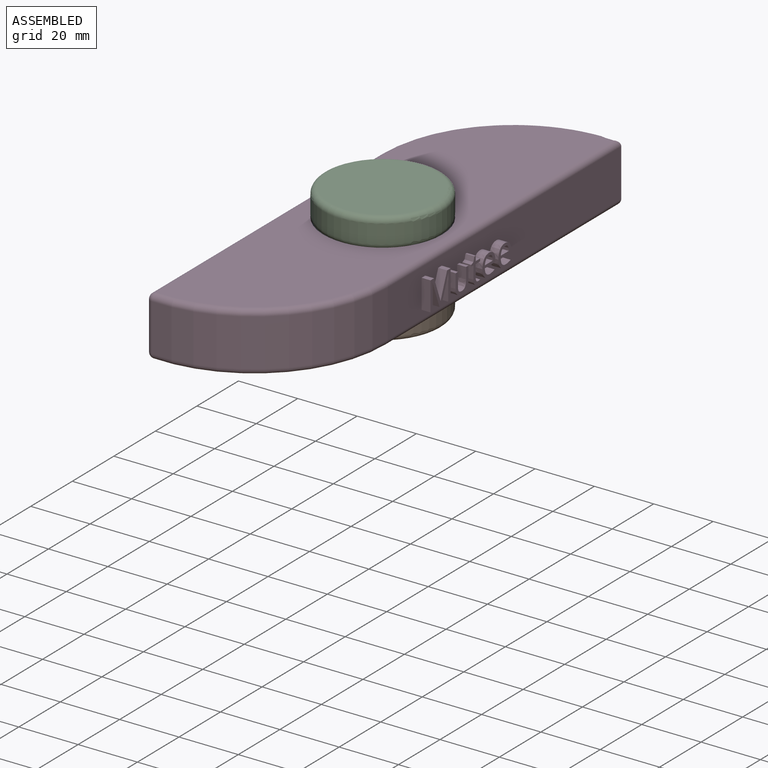
[diagram: assembled view]
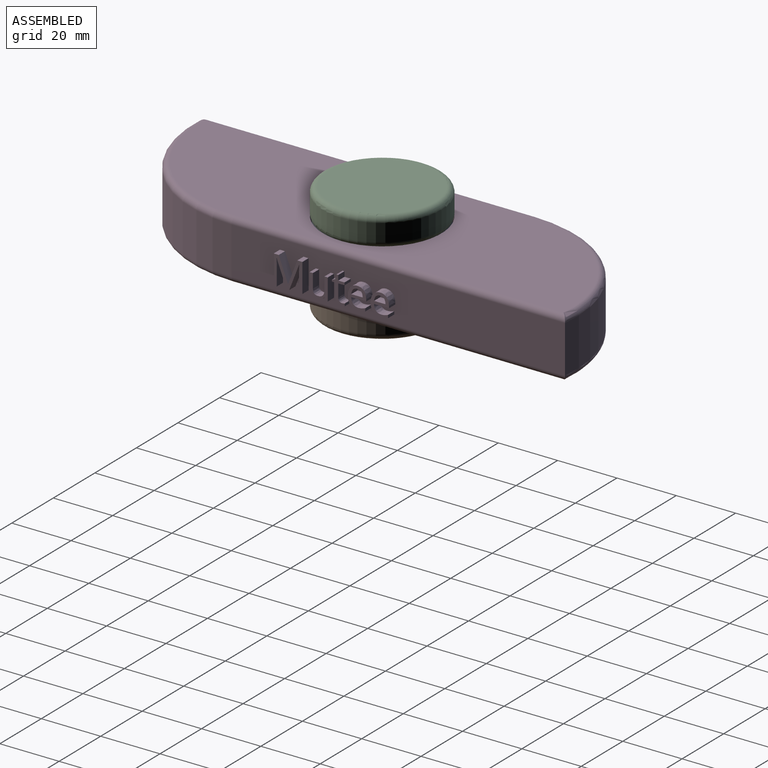
[diagram: assembled view, second angle]
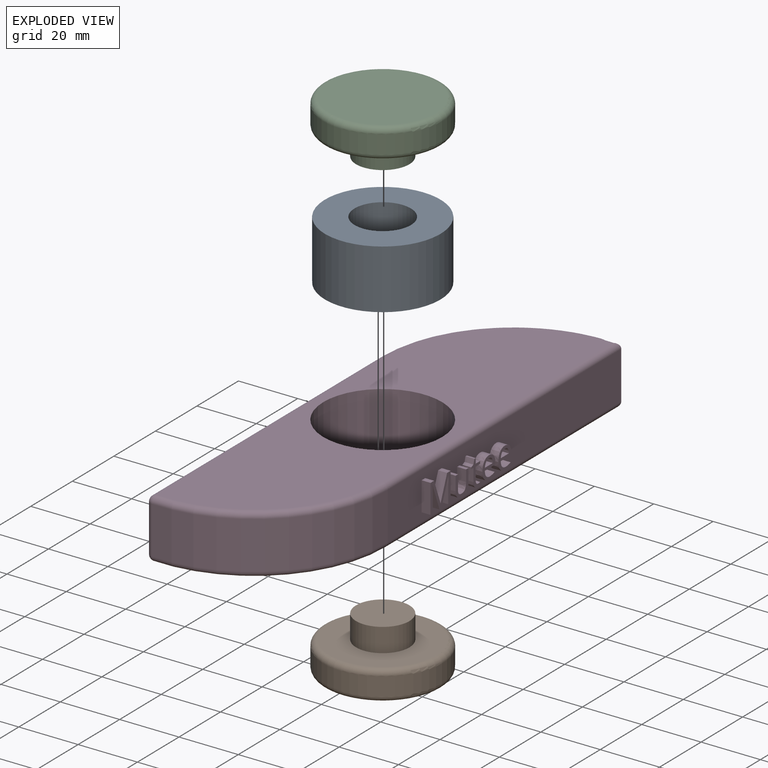
[diagram: exploded view]
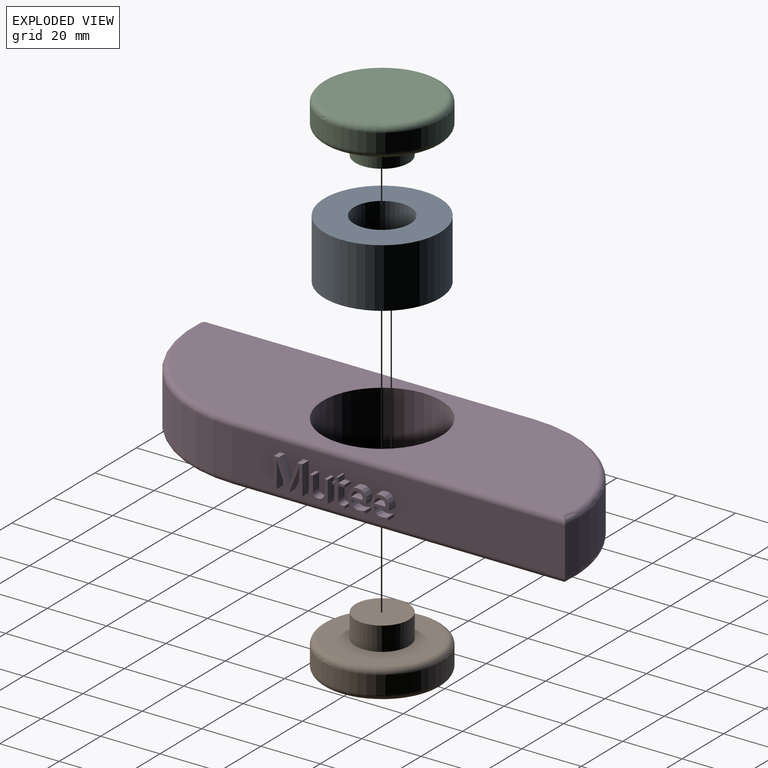
[diagram: exploded view, second angle]
ASSEMBLY  parts=4 mates=3
PART A: 7 faces, bbox 39x39x20 mm
  f0: cylinder r=19.5mm len=39mm, axis (0,0,-1), area 2450.4mm2, adj f1,f2
  f1: plane 39x39mm, normal (0,0,1), area 911.1mm2, adj f0,f5
  f2: plane 39x39mm, normal (0,0,-1), area 911.1mm2, adj f0,f3
  f3: cylinder r=9.5mm len=19mm, axis (0,0,-1), area 537.2mm2, adj f2,f4
  f4: plane 19x19mm, normal (0,0,-1), area 283.5mm2, adj f3
  f5: cylinder r=9.5mm len=19mm, axis (0,0,1), area 537.2mm2, adj f1,f6
  f6: plane 19x19mm, normal (0,0,1), area 283.5mm2, adj f5
PART B: 7 faces, bbox 43.3x43.3x18 mm
  f0: cylinder r=20mm len=40mm, axis (0,0,-1), area 754mm2, adj f3,f4
  f1: plane 36x36mm, normal (0,0,1), area 763.4mm2, adj f4,f5
  f2: plane 36x36mm, normal (0,0,-1), area 1017.9mm2, adj f3
  f3: torus R=18mm, axis (0,0,1), area 380.4mm2, adj f0,f2
  f4: torus R=18mm, axis (0,0,1), area 380.4mm2, adj f0,f1
  f5: cylinder r=9mm len=18mm, axis (0,0,-1), area 452.4mm2, adj f1,f6
  f6: plane 18x18mm, normal (0,0,1), area 254.5mm2, adj f5
PART C: 7 faces, bbox 43.3x43.3x18 mm
  f0: cylinder r=20mm len=40mm, axis (0,0,-1), area 754mm2, adj f5,f6
  f1: plane 36x36mm, normal (0,0,1), area 1017.9mm2, adj f6
  f2: plane 36x36mm, normal (0,0,-1), area 763.4mm2, adj f3,f5
  f3: cylinder r=9mm len=18mm, axis (0,0,1), area 452.4mm2, adj f2,f4
  f4: plane 18x18mm, normal (0,0,-1), area 254.5mm2, adj f3
  f5: torus R=18mm, axis (0,0,1), area 380.4mm2, adj f0,f2
  f6: torus R=18mm, axis (0,0,1), area 380.4mm2, adj f0,f1
PART D: 228 faces, bbox 57.4x165.2x20 mm
  f0: plane 110.63x16mm, normal (-1,0,0), area 1637.3mm2, adj f2,f9,f12,f16,f117,f118,f119,f120
  f1: plane 112.46x16mm, normal (1,0,0), area 1669.1mm2, adj f2,f3,f8,f15,f18,f19,f20,f21
  f2: cylinder r=45mm len=50mm, axis (0,0,-1), area 1211.1mm2, adj f0,f1,f7,f17
  f3: cylinder r=45mm len=48.14mm, axis (0,0,-1), area 1181.2mm2, adj f1,f10,f12,f13
  f4: plane 153.74x46mm, normal (0,0,1), area 5021.4mm2, adj f6,f7,f8,f9,f10
  f5: plane 153.74x46mm, normal (0,0,-1), area 5021.4mm2, adj f6,f13,f15,f16,f17
  f6: cylinder r=20mm len=40mm, axis (0,0,1), area 2513.3mm2, adj f4,f5
  f7: torus R=43mm, axis (0,0,1), area 231.9mm2, adj f2,f4,f8,f9
  f8: cylinder r=2mm len=112.46mm, axis (0,-1,0), area 351.2mm2, adj f1,f4,f7,f10
  f9: cylinder r=2mm len=110.63mm, axis (0,1,0), area 347.6mm2, adj f0,f4,f7,f11
  f10: torus R=43mm, axis (0,0,1), area 228.2mm2, adj f3,f4,f8,f11
  f11: sphere r=2mm, area 6mm2, adj f9,f10,f12
  f12: cylinder r=2mm len=16mm, axis (0,0,-1), area 48mm2, adj f0,f3,f11,f14
  f13: torus R=43mm, axis (0,0,1), area 228.2mm2, adj f3,f5,f14,f15
  f14: sphere r=2mm, area 6mm2, adj f12,f13,f16
  f15: cylinder r=2mm len=112.46mm, axis (0,1,0), area 351.2mm2, adj f1,f5,f13,f17
  f16: cylinder r=2mm len=110.63mm, axis (0,-1,0), area 347.6mm2, adj f0,f5,f14,f17,f162
  f17: torus R=43mm, axis (0,0,1), area 231.9mm2, adj f2,f5,f15,f16
  f18: plane 8.66x3.31mm, normal (0,-0.93,-0.36), area 27.8mm2, adj f1,f19,f35,f36
  f19: plane 3x0.91mm, normal (0,0,-1), area 2.7mm2, adj f1,f18,f20,f36
  f20: plane 8.64x3.34mm, normal (0,0.93,-0.36), area 27.8mm2, adj f1,f19,f21,f36
  f21: plane 3x0.05mm, normal (0,0,-1), area 0.2mm2, adj f1,f20,f22,f36
  f22: extruded ~3x2.35mm, area 7.1mm2, adj f1,f21,f23,f36
  f23: plane 6.29x3mm, normal (0,-1,0), area 18.9mm2, adj f1,f22,f24,f36
  f24: plane 3x1.13mm, normal (0,0,-1), area 3.4mm2, adj f1,f23,f25,f36
  f25: plane 9.76x3mm, normal (0,1,0), area 29.3mm2, adj f1,f24,f26,f36
  f26: plane 3x1.7mm, normal (0,0,1), area 5.1mm2, adj f1,f25,f27,f36
  f27: plane 8.05x3.12mm, normal (0,-0.93,0.36), area 25.9mm2, adj f1,f26,f28,f36
  f28: plane 3x0.05mm, normal (0,0,1), area 0.2mm2, adj f1,f27,f29,f36
  f29: plane 8.05x3.09mm, normal (0,0.93,0.36), area 25.9mm2, adj f1,f28,f30,f36
  f30: plane 3x1.71mm, normal (0,0,1), area 5.1mm2, adj f1,f29,f31,f36
  f31: plane 9.76x3mm, normal (0,-1,0), area 29.3mm2, adj f1,f30,f32,f36
  f32: plane 3x1.05mm, normal (0,0,-1), area 3.1mm2, adj f1,f31,f33,f36
  f33: plane 6.21x3mm, normal (0,1,0), area 18.6mm2, adj f1,f32,f34,f36
  f34: extruded ~3x2.44mm, area 7.3mm2, adj f1,f33,f35,f36
  f35: plane 3x0.05mm, normal (0,0,-1), area 0.2mm2, adj f1,f18,f34,f36
  f36: plane 9.76x9.67mm, normal (1,0,0), area 40.8mm2, adj f18,f19,f20,f21,f22,f23,f24,f25
  f37: plane 4.75x3mm, normal (0,1,0), area 14.2mm2, adj f1,f38,f53,f54
  f38: plane 3x1.12mm, normal (0,0,1), area 3.4mm2, adj f1,f37,f39,f54
  f39: plane 4.79x3mm, normal (0,-1,0), area 14.4mm2, adj f1,f38,f40,f54
  f40: extruded ~3x2.03mm, area 6.6mm2, adj f1,f39,f41,f54
  f41: extruded ~3x2mm, area 6.4mm2, adj f1,f40,f42,f54
  f42: extruded ~3x1.38mm, area 4.3mm2, adj f1,f41,f43,f54
  f43: extruded ~3x0.94mm, area 3.8mm2, adj f1,f42,f44,f54
  f44: plane 3x0.06mm, normal (0,0,-1), area 0.2mm2, adj f1,f43,f45,f54
  f45: plane 3x0.98mm, normal (0,-0.99,-0.16), area 3mm2, adj f1,f44,f46,f54
  f46: plane 3x0.91mm, normal (0,0,-1), area 2.7mm2, adj f1,f45,f47,f54
  f47: plane 7.32x3mm, normal (0,1,0), area 22mm2, adj f1,f46,f48,f54
  f48: plane 3x1.11mm, normal (0,0,1), area 3.3mm2, adj f1,f47,f49,f54
  f49: plane 3.85x3mm, normal (0,-1,0), area 11.5mm2, adj f1,f48,f50,f54
  f50: extruded ~3x2.05mm, area 6.5mm2, adj f1,f49,f51,f54
  f51: extruded ~3x1.68mm, area 5.6mm2, adj f1,f50,f52,f54
  f52: extruded ~3x1.27mm, area 4.2mm2, adj f1,f51,f53,f54
  f53: extruded ~3x1.34mm, area 4.3mm2, adj f1,f37,f52,f54
  f54: plane 7.45x6.12mm, normal (1,0,0), area 19.5mm2, adj f37,f38,f39,f40,f41,f42,f43,f44
  f55: extruded ~3x0.57mm, area 1.7mm2, adj f1,f56,f73,f74
  f56: extruded ~3x0.86mm, area 2.9mm2, adj f1,f55,f57,f74
  f57: extruded ~3x1.01mm, area 3.3mm2, adj f1,f56,f58,f74
  f58: plane 4.31x3mm, normal (0,1,0), area 12.9mm2, adj f1,f57,f59,f74
  f59: plane 3x2.12mm, normal (0,0,-1), area 6.4mm2, adj f1,f58,f60,f74
  f60: plane 3x0.86mm, normal (0,1,0), area 2.6mm2, adj f1,f59,f61,f74
  f61: plane 3x2.12mm, normal (0,0,1), area 6.4mm2, adj f1,f60,f62,f74
  f62: plane 3x1.7mm, normal (0,1,0), area 5.1mm2, adj f1,f61,f63,f74
  f63: plane 3x0.64mm, normal (0,0,1), area 1.9mm2, adj f1,f62,f64,f74
  f64: plane 3x1.56mm, normal (0,-0.96,0.29), area 4.9mm2, adj f1,f63,f65,f74
  f65: plane 3x1.05mm, normal (0,-0.4,0.92), area 3.4mm2, adj f1,f64,f66,f74
  f66: plane 3x0.53mm, normal (0,-1,0), area 1.6mm2, adj f1,f65,f67,f74
  f67: plane 3x1.05mm, normal (0,0,-1), area 3.1mm2, adj f1,f66,f68,f74
  f68: plane 4.36x3mm, normal (0,-1,0), area 13.1mm2, adj f1,f67,f69,f74
  f69: extruded ~3x2.24mm, area 10.6mm2, adj f1,f68,f70,f74
  f70: extruded ~3x0.63mm, area 1.9mm2, adj f1,f69,f71,f74
  f71: extruded ~3x0.53mm, area 1.7mm2, adj f1,f70,f72,f74
  f72: plane 3x0.85mm, normal (0,1,0), area 2.5mm2, adj f1,f71,f73,f74
  f73: extruded ~3x0.43mm, area 1.3mm2, adj f1,f55,f72,f74
  f74: plane 9.15x4.33mm, normal (1,0,0), area 13.9mm2, adj f55,f56,f57,f58,f59,f60,f61,f62
  f75: extruded ~3x1.41mm, area 4.7mm2, adj f76,f93,f94,f95
  f76: extruded ~3x1.34mm, area 4.5mm2, adj f75,f77,f94,f95
  f77: extruded ~3x1.61mm, area 5.1mm2, adj f76,f78,f94,f95
  f78: plane 3.83x3mm, normal (0,0,1), area 11.5mm2, adj f77,f93,f94,f95
  f79: extruded ~3x2.56mm, area 8.5mm2, adj f1,f80,f92,f94
  f80: extruded ~3x1.27mm, area 3.8mm2, adj f1,f79,f81,f94
  f81: extruded ~3x1.11mm, area 3.5mm2, adj f1,f80,f82,f94
  f82: plane 3x0.99mm, normal (0,1,0), area 3mm2, adj f1,f81,f83,f94
  f83: extruded ~3x2.34mm, area 7.2mm2, adj f1,f82,f84,f94
  f84: extruded ~3x1.74mm, area 5.8mm2, adj f1,f83,f85,f94
  f85: extruded ~3x1.96mm, area 6.3mm2, adj f1,f84,f86,f94
  f86: plane 5.04x3mm, normal (0,0,-1), area 15.1mm2, adj f1,f85,f87,f94
  f87: plane 3x0.7mm, normal (0,1,0), area 2.1mm2, adj f1,f86,f88,f94
  f88: extruded ~3x2.39mm, area 7.7mm2, adj f1,f87,f89,f94
  f89: extruded ~3x2.18mm, area 7.3mm2, adj f1,f88,f90,f94
  f90: extruded ~3x2.34mm, area 8mm2, adj f1,f89,f91,f94
  f91: extruded ~3x2.81mm, area 9mm2, adj f1,f90,f92,f94
  f92: extruded ~3x2.74mm, area 8.9mm2, adj f1,f79,f91,f94
  f93: extruded ~3x1.59mm, area 5.2mm2, adj f75,f78,f94,f95
  f94: plane 7.59x6.19mm, normal (1,0,0), area 21.4mm2, adj f75,f76,f77,f78,f79,f80,f81,f82
  f95: plane 3.83x2.16mm, normal (1,0,0), area 6.7mm2, adj f75,f76,f77,f78,f93
  f96: extruded ~3x1.41mm, area 4.7mm2, adj f97,f114,f115,f116
  f97: extruded ~3x1.34mm, area 4.5mm2, adj f96,f98,f115,f116
  f98: extruded ~3x1.61mm, area 5.1mm2, adj f97,f99,f115,f116
  f99: plane 3.83x3mm, normal (0,0,1), area 11.5mm2, adj f98,f114,f115,f116
  f100: extruded ~3x2.56mm, area 8.5mm2, adj f1,f101,f113,f115
  f101: extruded ~3x1.27mm, area 3.8mm2, adj f1,f100,f102,f115
  f102: extruded ~3x1.11mm, area 3.5mm2, adj f1,f101,f103,f115
  f103: plane 3x0.99mm, normal (0,1,0), area 3mm2, adj f1,f102,f104,f115
  f104: extruded ~3x2.34mm, area 7.2mm2, adj f1,f103,f105,f115
  f105: extruded ~3x1.74mm, area 5.8mm2, adj f1,f104,f106,f115
  f106: extruded ~3x1.96mm, area 6.3mm2, adj f1,f105,f107,f115
  f107: plane 5.04x3mm, normal (0,0,-1), area 15.1mm2, adj f1,f106,f108,f115
  f108: plane 3x0.7mm, normal (0,1,0), area 2.1mm2, adj f1,f107,f109,f115
  f109: extruded ~3x2.39mm, area 7.7mm2, adj f1,f108,f110,f115
  f110: extruded ~3x2.18mm, area 7.3mm2, adj f1,f109,f111,f115
  f111: extruded ~3x2.34mm, area 8mm2, adj f1,f110,f112,f115
  f112: extruded ~3x2.81mm, area 9mm2, adj f1,f111,f113,f115
  f113: extruded ~3x2.74mm, area 8.9mm2, adj f1,f100,f112,f115
  f114: extruded ~3x1.59mm, area 5.2mm2, adj f96,f99,f115,f116
  f115: plane 7.59x6.19mm, normal (1,0,0), area 21.4mm2, adj f96,f97,f98,f99,f100,f101,f102,f103
  f116: plane 3.83x2.16mm, normal (1,0,0), area 6.7mm2, adj f96,f97,f98,f99,f114
  f117: extruded ~3x1.12mm, area 4.3mm2, adj f0,f118,f131,f132
  f118: plane 3x0.06mm, normal (0,0,1), area 0.2mm2, adj f0,f117,f119,f132
  f119: extruded ~3x1.19mm, area 3.6mm2, adj f0,f118,f120,f132
  f120: plane 5.76x3mm, normal (0,-1,0), area 17.3mm2, adj f0,f119,f121,f132
  f121: plane 3x1.15mm, normal (0,0,1), area 3.4mm2, adj f0,f120,f122,f132
  f122: plane 10.86x3mm, normal (0,1,0), area 32.6mm2, adj f0,f121,f123,f132
  f123: plane 3x1.15mm, normal (0,0,-1), area 3.4mm2, adj f0,f122,f124,f132
  f124: plane 3x2.86mm, normal (0,-1,0), area 8.6mm2, adj f0,f123,f125,f132
  f125: plane 3x0.87mm, normal (0,-0.65,-0.76), area 3.5mm2, adj f0,f124,f126,f132
  f126: plane 3.62x3mm, normal (0,0.8,-0.6), area 13.5mm2, adj f0,f125,f127,f132
  f127: plane 3x1.4mm, normal (0,0,-1), area 4.2mm2, adj f0,f126,f128,f132
  f128: plane 4.39x3.32mm, normal (0,-0.8,0.6), area 16.5mm2, adj f0,f127,f129,f132
  f129: plane 3.26x3.1mm, normal (0,-0.72,-0.69), area 13.5mm2, adj f0,f128,f130,f132
  f130: plane 3x1.38mm, normal (0,0,1), area 4.1mm2, adj f0,f129,f131,f132
  f131: plane 3x2.62mm, normal (0,0.73,0.69), area 10.8mm2, adj f0,f117,f130,f132
  f132: plane 10.86x6.12mm, normal (-1,0,0), area 23.6mm2, adj f117,f118,f119,f120,f121,f122,f123,f124
  f133: extruded ~3x1.7mm, area 5.5mm2, adj f134,f159,f160,f161
  f134: extruded ~3x1.06mm, area 3.4mm2, adj f133,f135,f160,f161
  f135: extruded ~3x0.96mm, area 3.2mm2, adj f134,f136,f160,f161
  f136: extruded ~3x1.18mm, area 4.2mm2, adj f135,f137,f160,f161
  f137: extruded ~3x1.99mm, area 6.2mm2, adj f136,f138,f160,f161
  f138: plane 3x1.16mm, normal (0,-0.04,-1), area 3.5mm2, adj f137,f139,f160,f161
  f139: plane 3x0.69mm, normal (0,1,0), area 2.1mm2, adj f138,f159,f160,f161
  f140: plane 3x1.09mm, normal (0,0.98,-0.21), area 3.3mm2, adj f0,f141,f158,f160
  f141: plane 3x0.86mm, normal (0,0,-1), area 2.6mm2, adj f0,f140,f142,f160
  f142: plane 5.22x3mm, normal (0,-1,0), area 15.7mm2, adj f0,f141,f143,f160
  f143: extruded ~3x1.95mm, area 6.3mm2, adj f0,f142,f144,f160
  f144: extruded ~3x2.03mm, area 6.5mm2, adj f0,f143,f145,f160
  f145: extruded ~3x1.35mm, area 4.1mm2, adj f0,f144,f146,f160
  f146: extruded ~3x1.24mm, area 4mm2, adj f0,f145,f147,f160
  f147: plane 3x0.89mm, normal (0,0.93,-0.37), area 2.9mm2, adj f0,f146,f148,f160
  f148: extruded ~3x2.16mm, area 6.8mm2, adj f0,f147,f149,f160
  f149: extruded ~3x1.24mm, area 4.1mm2, adj f0,f148,f150,f160
  f150: extruded ~3x1.33mm, area 4.2mm2, adj f0,f149,f151,f160
  f151: plane 3x0.48mm, normal (0,1,0), area 1.4mm2, adj f0,f150,f152,f160
  f152: plane 3x1.3mm, normal (0,0.03,1), area 3.9mm2, adj f0,f151,f153,f160
  f153: extruded ~3.71x3mm, area 14.9mm2, adj f0,f152,f154,f160
  f154: extruded ~3x1.67mm, area 5.5mm2, adj f0,f153,f155,f160
  f155: extruded ~3x1.78mm, area 5.8mm2, adj f0,f154,f156,f160
  f156: extruded ~3x1.42mm, area 4.4mm2, adj f0,f155,f157,f160
  f157: extruded ~3x1.14mm, area 4.5mm2, adj f0,f156,f158,f160
  f158: plane 3x0.06mm, normal (0,0,-1), area 0.2mm2, adj f0,f140,f157,f160
  f159: extruded ~3x1.66mm, area 5.5mm2, adj f133,f139,f160,f161
  f160: plane 7.92x6.14mm, normal (-1,0,0), area 22.9mm2, adj f133,f134,f135,f136,f137,f138,f139,f140
  f161: plane 3.76x2.94mm, normal (-1,0,0), area 8.9mm2, adj f133,f134,f135,f136,f137,f138,f139,f159
  f162: plane 2.31x0.32mm, normal (1,0,0), area 0.5mm2, adj f16,f163,f177,f178
  f163: extruded ~3x1.6mm, area 5.2mm2, adj f0,f162,f164,f178,f179
  f164: extruded ~3x1.83mm, area 6.5mm2, adj f0,f163,f165,f179
  f165: plane 8.71x3.29mm, normal (0,-0.94,-0.35), area 27.9mm2, adj f0,f164,f166,f179
  f166: plane 3x1.24mm, normal (0,0,1), area 3.7mm2, adj f0,f165,f167,f179
  f167: extruded ~5.3x3mm, area 16.9mm2, adj f0,f166,f168,f179
  f168: extruded ~3x1.22mm, area 3.8mm2, adj f0,f167,f169,f179
  f169: plane 3x0.06mm, normal (0,0,1), area 0.2mm2, adj f0,f168,f170,f179
  f170: extruded ~3x2.16mm, area 6.8mm2, adj f0,f169,f171,f179
  f171: plane 4.36x3mm, normal (0,-0.93,0.36), area 14mm2, adj f0,f170,f172,f179
  f172: plane 3x1.24mm, normal (0,0,1), area 3.7mm2, adj f0,f171,f173,f179
  f173: plane 7.69x3.09mm, normal (0,0.93,-0.37), area 24.9mm2, adj f0,f172,f174,f179
  f174: plane 3x1.09mm, normal (0,0.93,0.37), area 3.5mm2, adj f0,f173,f175,f179
  f175: extruded ~3x1.7mm, area 7mm2, adj f0,f174,f176,f179
  f176: extruded ~3x0.86mm, area 2.6mm2, adj f0,f175,f177,f179
  f177: plane 3x0.93mm, normal (0,1,0), area 2.8mm2, adj f0,f162,f176,f178,f179
  f178: extruded ~3x1.05mm, area 3.2mm2, adj f162,f163,f177,f179
  f179: plane 11.09x7.18mm, normal (-1,0,0), area 22.7mm2, adj f163,f164,f165,f166,f167,f168,f169,f170
  f180: extruded ~3x1.7mm, area 5.5mm2, adj f181,f206,f207,f208
  f181: extruded ~3x1.06mm, area 3.4mm2, adj f180,f182,f207,f208
  f182: extruded ~3x0.96mm, area 3.2mm2, adj f181,f183,f207,f208
  f183: extruded ~3x1.18mm, area 4.2mm2, adj f182,f184,f207,f208
  f184: extruded ~3x1.99mm, area 6.2mm2, adj f183,f185,f207,f208
  f185: plane 3x1.16mm, normal (0,-0.04,-1), area 3.5mm2, adj f184,f186,f207,f208
  f186: plane 3x0.69mm, normal (0,1,0), area 2.1mm2, adj f185,f206,f207,f208
  f187: plane 3x1.09mm, normal (0,0.98,-0.21), area 3.3mm2, adj f0,f188,f205,f207
  f188: plane 3x0.86mm, normal (0,0,-1), area 2.6mm2, adj f0,f187,f189,f207
  f189: plane 5.22x3mm, normal (0,-1,0), area 15.7mm2, adj f0,f188,f190,f207
  f190: extruded ~3x1.95mm, area 6.3mm2, adj f0,f189,f191,f207
  f191: extruded ~3x2.03mm, area 6.5mm2, adj f0,f190,f192,f207
  f192: extruded ~3x1.35mm, area 4.1mm2, adj f0,f191,f193,f207
  f193: extruded ~3x1.24mm, area 4mm2, adj f0,f192,f194,f207
  f194: plane 3x0.89mm, normal (0,0.93,-0.37), area 2.9mm2, adj f0,f193,f195,f207
  f195: extruded ~3x2.16mm, area 6.8mm2, adj f0,f194,f196,f207
  f196: extruded ~3x1.24mm, area 4.1mm2, adj f0,f195,f197,f207
  f197: extruded ~3x1.33mm, area 4.2mm2, adj f0,f196,f198,f207
  f198: plane 3x0.48mm, normal (0,1,0), area 1.4mm2, adj f0,f197,f199,f207
  f199: plane 3x1.3mm, normal (0,0.03,1), area 3.9mm2, adj f0,f198,f200,f207
  f200: extruded ~3.71x3mm, area 14.9mm2, adj f0,f199,f201,f207
  f201: extruded ~3x1.67mm, area 5.5mm2, adj f0,f200,f202,f207
  f202: extruded ~3x1.78mm, area 5.8mm2, adj f0,f201,f203,f207
  f203: extruded ~3x1.42mm, area 4.4mm2, adj f0,f202,f204,f207
  f204: extruded ~3x1.14mm, area 4.5mm2, adj f0,f203,f205,f207
  f205: plane 3x0.06mm, normal (0,0,-1), area 0.2mm2, adj f0,f187,f204,f207
  f206: extruded ~3x1.66mm, area 5.5mm2, adj f180,f186,f207,f208
  f207: plane 7.92x6.14mm, normal (-1,0,0), area 22.9mm2, adj f180,f181,f182,f183,f184,f185,f186,f187
  f208: plane 3.76x2.94mm, normal (-1,0,0), area 8.9mm2, adj f180,f181,f182,f183,f184,f185,f186,f206
  f209: plane 3x1.16mm, normal (0,0,-1), area 3.5mm2, adj f0,f210,f212,f213
  f210: plane 10.86x3mm, normal (0,-1,0), area 32.6mm2, adj f0,f209,f211,f213
  f211: plane 3x1.16mm, normal (0,0,1), area 3.5mm2, adj f0,f210,f212,f213
  f212: plane 10.86x3mm, normal (0,1,0), area 32.6mm2, adj f0,f209,f211,f213
  f213: plane 10.86x1.16mm, normal (-1,0,0), area 12.6mm2, adj f209,f210,f211,f212
  f214: plane 3x1.16mm, normal (0,0,-1), area 3.5mm2, adj f0,f215,f217,f218
  f215: plane 7.65x3mm, normal (0,-1,0), area 23mm2, adj f0,f214,f216,f218
  f216: plane 3x1.16mm, normal (0,0,1), area 3.5mm2, adj f0,f215,f217,f218
  f217: plane 7.65x3mm, normal (0,1,0), area 23mm2, adj f0,f214,f216,f218
  f218: plane 7.65x1.16mm, normal (-1,0,0), area 8.9mm2, adj f214,f215,f216,f217
  f219: extruded ~3x0.58mm, area 1.9mm2, adj f0,f220,f226,f227
  f220: extruded ~3x0.58mm, area 1.9mm2, adj f0,f219,f221,f227
  f221: extruded ~3x0.49mm, area 1.6mm2, adj f0,f220,f222,f227
  f222: extruded ~3x0.48mm, area 1.6mm2, adj f0,f221,f223,f227
  f223: extruded ~3x0.58mm, area 1.9mm2, adj f0,f222,f224,f227
  f224: extruded ~3x0.58mm, area 1.9mm2, adj f0,f223,f225,f227
  f225: extruded ~3x0.48mm, area 1.6mm2, adj f0,f224,f226,f227
  f226: extruded ~3x0.49mm, area 1.6mm2, adj f0,f219,f225,f227
  f227: plane 1.54x1.37mm, normal (-1,0,0), area 1.7mm2, adj f219,f220,f221,f222,f223,f224,f225,f226
PLACE A rot(axis=(0,0,1),90deg) t=(25,34.43,0.11)mm
PLACE B t=(88.59,40.91,-8.89)mm
PLACE C t=(71.63,-67.79,19.11)mm
PLACE D at identity fixed
MATE slider C.f0 <-> A.f0  axis (0,0,-1) through (25,-17.59,11.11)mm
MATE slider A.f0 <-> D.f6  axis (0,0,-1) through (25,-17.59,10.11)mm
MATE slider B.f0 <-> A.f0  axis (0,0,1) through (25,-17.59,9.11)mm
